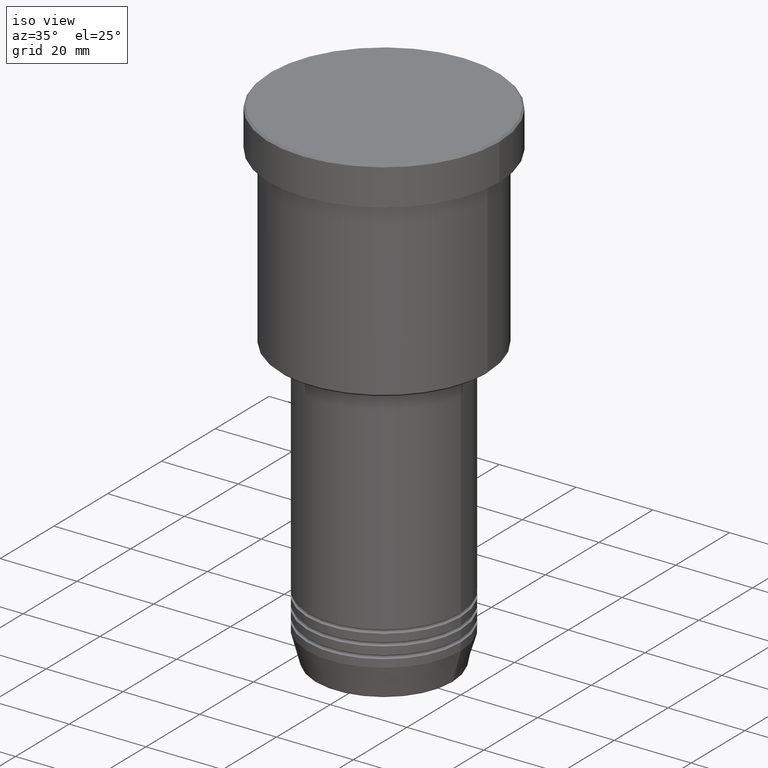
[diagram: clean part render]
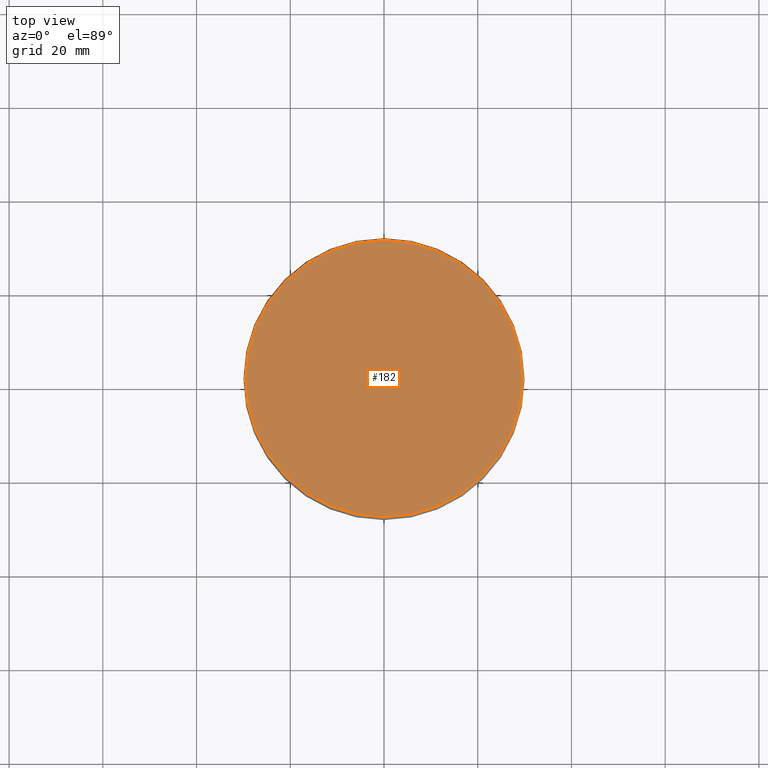
[diagram: tour spotlight — one face highlighted and labeled with its STEP entity id]
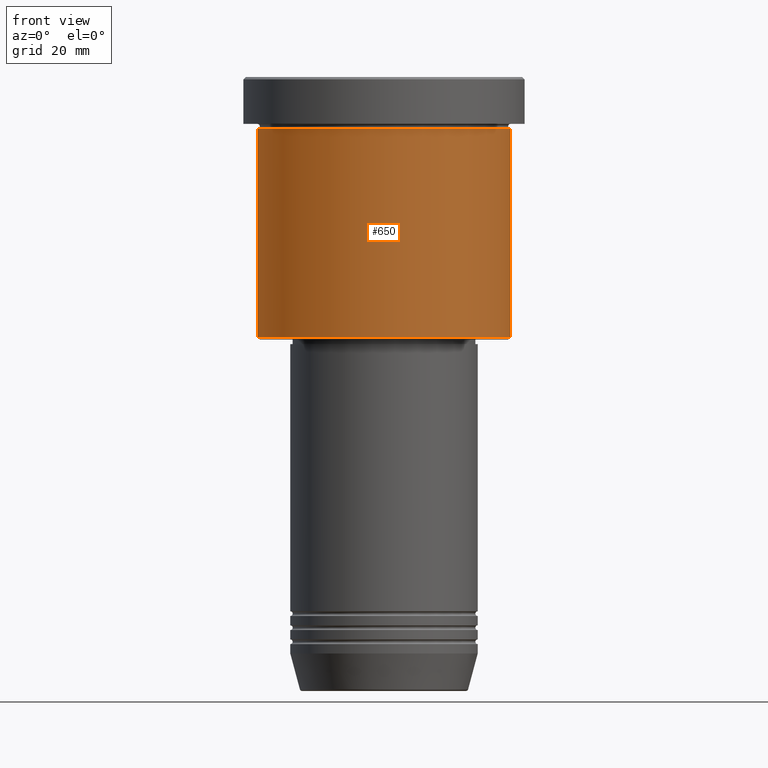
[diagram: tour spotlight — one face highlighted and labeled with its STEP entity id]
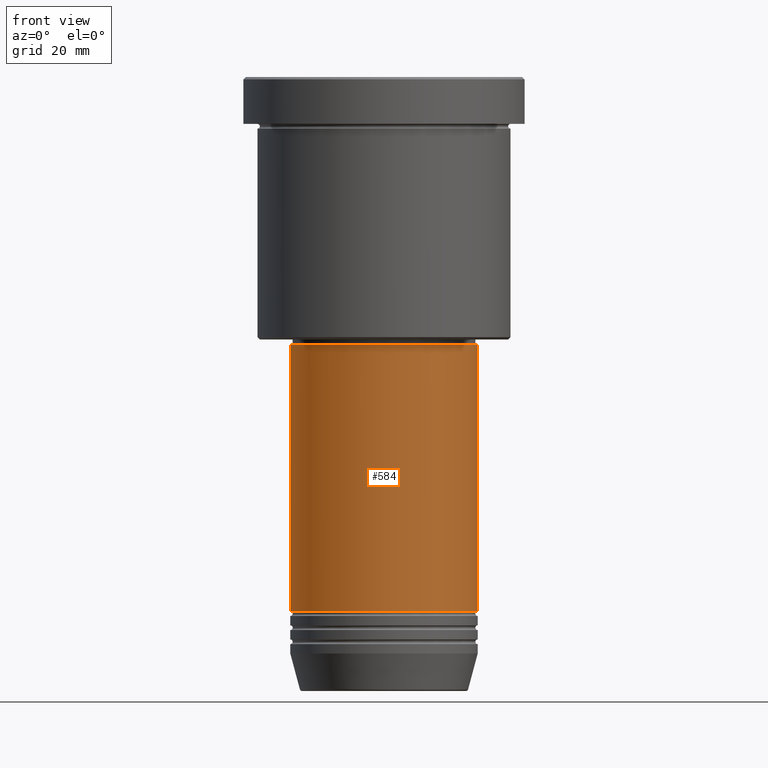
[diagram: tour spotlight — one face highlighted and labeled with its STEP entity id]
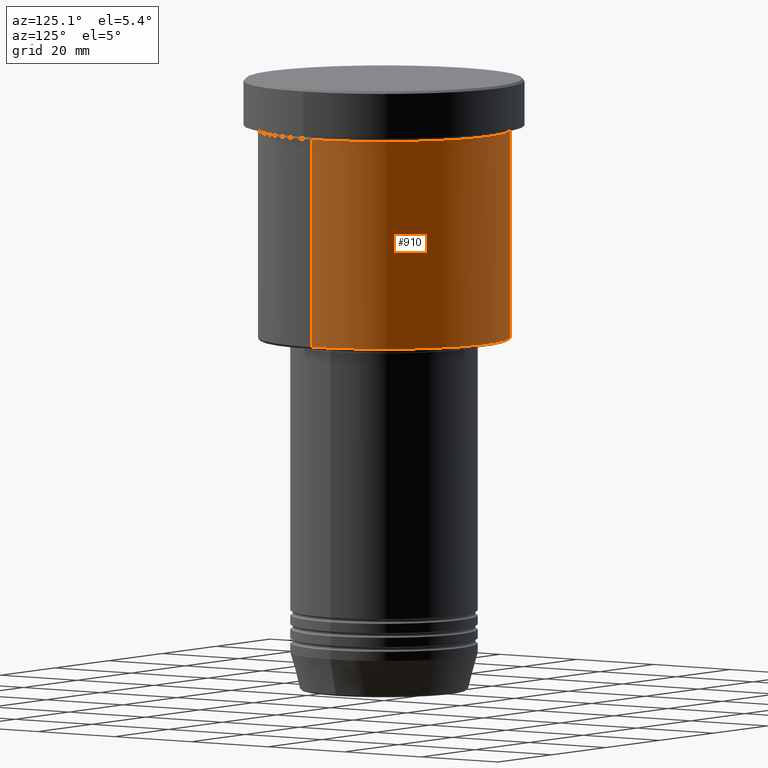
[diagram: tour spotlight — one face highlighted and labeled with its STEP entity id]
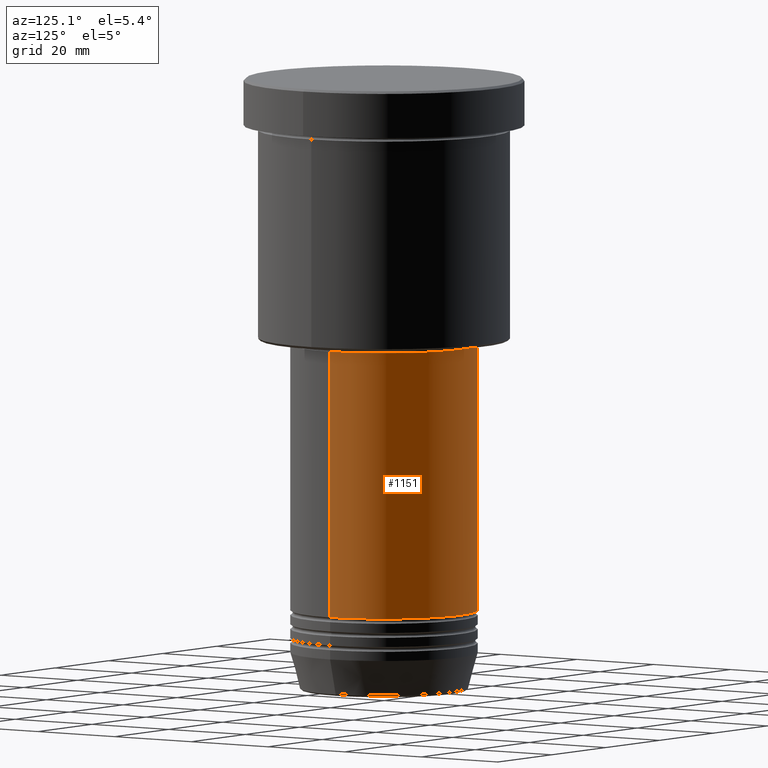
[diagram: tour spotlight — one face highlighted and labeled with its STEP entity id]
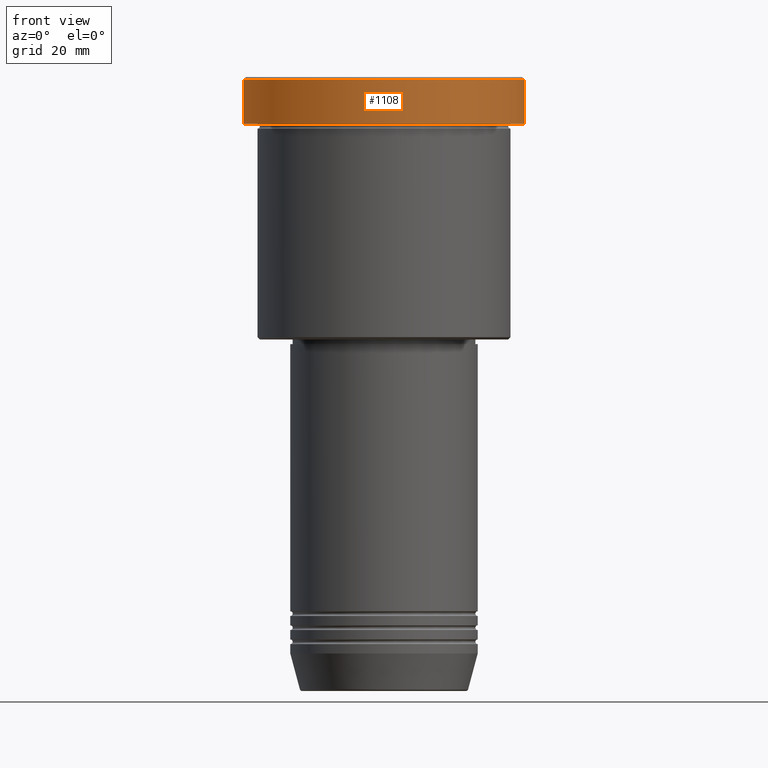
[diagram: tour spotlight — one face highlighted and labeled with its STEP entity id]
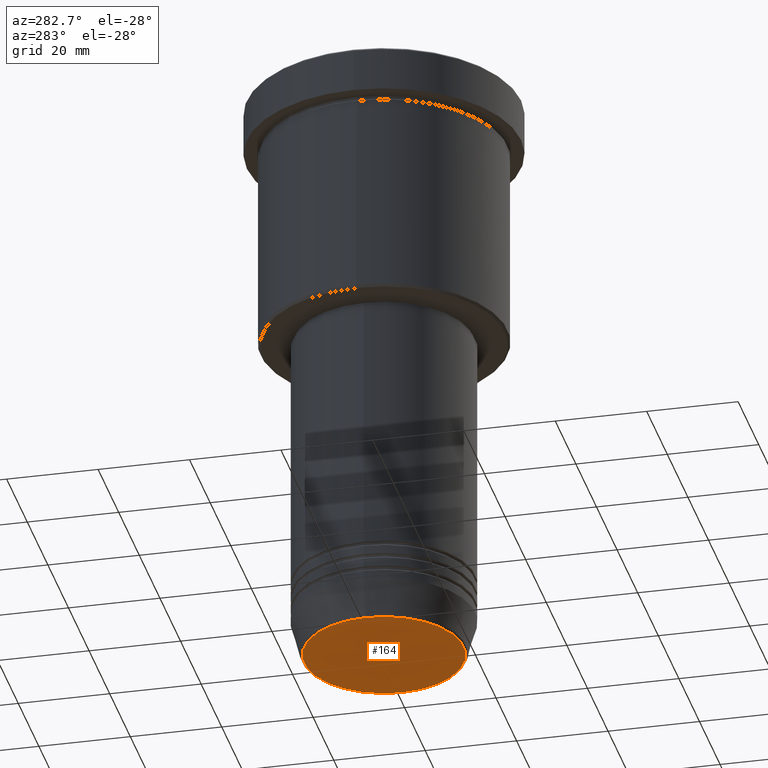
[diagram: tour spotlight — one face highlighted and labeled with its STEP entity id]
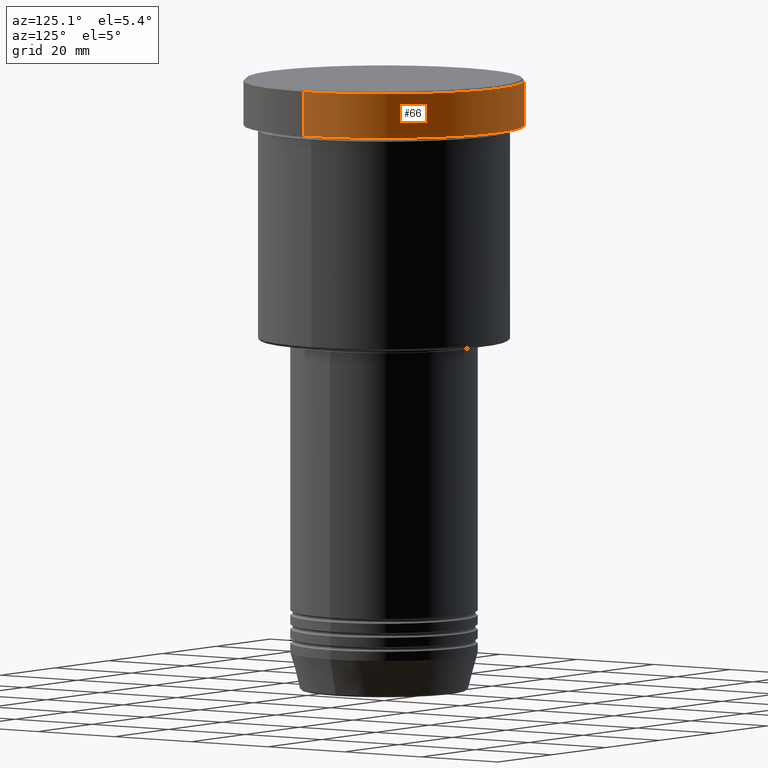
[diagram: tour spotlight — one face highlighted and labeled with its STEP entity id]
A machine part: a face-by-face anatomy tour. The part has 43 B-rep faces; the first image is the clean iso view, then the 8 largest visible faces are spotlighted one at a time (largest first), each with its STEP entity span.

Face 1 — top view, entity #182. In plain terms, the highlighted planar face has unit normal (0, -0, 1).
Definition (entity closure, byte-faithful):
#5 = EDGE_CURVE ( 'NONE', #975, #867, #710, .T. ) ;
#144 = CARTESIAN_POINT ( 'NONE',  ( 0.000000000000000000, 0.000000000000000000, 0.000000000000000000 ) ) ;
#182 = ADVANCED_FACE ( 'NONE', ( #258 ), #435, .T. ) ;
#258 = FACE_OUTER_BOUND ( 'NONE', #833, .T. ) ;
#274 = CARTESIAN_POINT ( 'NONE',  ( -29.50000000000000000, 0.000000000000000000, 0.000000000000000000 ) ) ;
#352 = DIRECTION ( 'NONE',  ( 1.000000000000000000, 0.000000000000000000, 0.000000000000000000 ) ) ;
#387 = CIRCLE ( 'NONE', #1067, 29.50000000000000000 ) ;
#422 = DIRECTION ( 'NONE',  ( -0.000000000000000000, -0.000000000000000000, 1.000000000000000000 ) ) ;
#430 = AXIS2_PLACEMENT_3D ( 'NONE', #144, #894, #352 ) ;
#435 = PLANE ( 'NONE',  #430 ) ;
#476 = ORIENTED_EDGE ( 'NONE', *, *, #5, .T. ) ;
#493 = CARTESIAN_POINT ( 'NONE',  ( 29.50000000000000000, 3.643324227463375391E-15, 0.000000000000000000 ) ) ;
#513 = CARTESIAN_POINT ( 'NONE',  ( 0.000000000000000000, 0.000000000000000000, 0.000000000000000000 ) ) ;
#544 = EDGE_CURVE ( 'NONE', #867, #975, #387, .T. ) ;
#630 = DIRECTION ( 'NONE',  ( -0.000000000000000000, -0.000000000000000000, 1.000000000000000000 ) ) ;
#643 = DIRECTION ( 'NONE',  ( 1.000000000000000000, 0.000000000000000000, 0.000000000000000000 ) ) ;
#710 = CIRCLE ( 'NONE', #855, 29.50000000000000000 ) ;
#833 = EDGE_LOOP ( 'NONE', ( #1052, #476 ) ) ;
#855 = AXIS2_PLACEMENT_3D ( 'NONE', #513, #422, #898 ) ;
#867 = VERTEX_POINT ( 'NONE', #274 ) ;
#894 = DIRECTION ( 'NONE',  ( 0.000000000000000000, -0.000000000000000000, 1.000000000000000000 ) ) ;
#898 = DIRECTION ( 'NONE',  ( 1.000000000000000000, 0.000000000000000000, 0.000000000000000000 ) ) ;
#975 = VERTEX_POINT ( 'NONE', #493 ) ;
#1002 = CARTESIAN_POINT ( 'NONE',  ( 0.000000000000000000, 0.000000000000000000, 0.000000000000000000 ) ) ;
#1052 = ORIENTED_EDGE ( 'NONE', *, *, #544, .T. ) ;
#1067 = AXIS2_PLACEMENT_3D ( 'NONE', #1002, #630, #643 ) ;

Face 2 — front view, entity #650. In plain terms, the highlighted cylindrical surface (partial cylindrical patch) has radius 27 mm, axis along (-0, -0, 1).
Definition (entity closure, byte-faithful):
#18 = DIRECTION ( 'NONE',  ( -0.000000000000000000, -0.000000000000000000, 1.000000000000000000 ) ) ;
#29 = VECTOR ( 'NONE', #301, 1000.000000000000000 ) ;
#72 = FACE_OUTER_BOUND ( 'NONE', #81, .T. ) ;
#81 = EDGE_LOOP ( 'NONE', ( #108, #981, #661, #711 ) ) ;
#107 = LINE ( 'NONE', #639, #167 ) ;
#108 = ORIENTED_EDGE ( 'NONE', *, *, #905, .F. ) ;
#124 = DIRECTION ( 'NONE',  ( 1.000000000000000000, 0.000000000000000000, 0.000000000000000000 ) ) ;
#150 = CIRCLE ( 'NONE', #336, 27.00000000000000355 ) ;
#167 = VECTOR ( 'NONE', #184, 1000.000000000000000 ) ;
#170 = CYLINDRICAL_SURFACE ( 'NONE', #818, 27.00000000000000355 ) ;
#184 = DIRECTION ( 'NONE',  ( -0.000000000000000000, -0.000000000000000000, 1.000000000000000000 ) ) ;
#222 = LINE ( 'NONE', #1137, #29 ) ;
#260 = CARTESIAN_POINT ( 'NONE',  ( 27.00000000000000355, 0.000000000000000000, -55.49999999999996447 ) ) ;
#301 = DIRECTION ( 'NONE',  ( -0.000000000000000000, -0.000000000000000000, 1.000000000000000000 ) ) ;
#336 = AXIS2_PLACEMENT_3D ( 'NONE', #444, #452, #823 ) ;
#360 = DIRECTION ( 'NONE',  ( -0.000000000000000000, -0.000000000000000000, 1.000000000000000000 ) ) ;
#417 = CARTESIAN_POINT ( 'NONE',  ( -27.00000000000000355, 3.306546357697854128E-15, -55.49999999999996447 ) ) ;
#440 = VERTEX_POINT ( 'NONE', #260 ) ;
#444 = CARTESIAN_POINT ( 'NONE',  ( 0.000000000000000000, 0.000000000000000000, -55.49999999999996447 ) ) ;
#452 = DIRECTION ( 'NONE',  ( -0.000000000000000000, -0.000000000000000000, 1.000000000000000000 ) ) ;
#473 = CARTESIAN_POINT ( 'NONE',  ( 0.000000000000000000, 0.000000000000000000, -10.99999999999999289 ) ) ;
#482 = VERTEX_POINT ( 'NONE', #417 ) ;
#600 = VERTEX_POINT ( 'NONE', #989 ) ;
#615 = EDGE_CURVE ( 'NONE', #482, #440, #150, .T. ) ;
#639 = CARTESIAN_POINT ( 'NONE',  ( -27.00000000000000355, 3.306546357697854128E-15, 0.000000000000000000 ) ) ;
#648 = CARTESIAN_POINT ( 'NONE',  ( 27.00000000000000355, 0.000000000000000000, -10.99999999999999289 ) ) ;
#650 = ADVANCED_FACE ( 'NONE', ( #72 ), #170, .T. ) ;
#655 = DIRECTION ( 'NONE',  ( 1.000000000000000000, 0.000000000000000000, 0.000000000000000000 ) ) ;
#661 = ORIENTED_EDGE ( 'NONE', *, *, #801, .T. ) ;
#702 = EDGE_CURVE ( 'NONE', #600, #852, #838, .T. ) ;
#711 = ORIENTED_EDGE ( 'NONE', *, *, #702, .F. ) ;
#720 = CARTESIAN_POINT ( 'NONE',  ( 0.000000000000000000, 0.000000000000000000, 0.000000000000000000 ) ) ;
#801 = EDGE_CURVE ( 'NONE', #440, #852, #222, .T. ) ;
#818 = AXIS2_PLACEMENT_3D ( 'NONE', #720, #360, #124 ) ;
#823 = DIRECTION ( 'NONE',  ( -1.000000000000000000, 0.000000000000000000, 0.000000000000000000 ) ) ;
#838 = CIRCLE ( 'NONE', #900, 27.00000000000000355 ) ;
#852 = VERTEX_POINT ( 'NONE', #648 ) ;
#900 = AXIS2_PLACEMENT_3D ( 'NONE', #473, #18, #655 ) ;
#905 = EDGE_CURVE ( 'NONE', #482, #600, #107, .T. ) ;
#981 = ORIENTED_EDGE ( 'NONE', *, *, #615, .T. ) ;
#989 = CARTESIAN_POINT ( 'NONE',  ( -27.00000000000000355, 3.306546357697854128E-15, -10.99999999999999289 ) ) ;
#1137 = CARTESIAN_POINT ( 'NONE',  ( 27.00000000000000355, 0.000000000000000000, 0.000000000000000000 ) ) ;

Face 3 — front view, entity #584. In plain terms, the highlighted cylindrical surface (partial cylindrical patch) has radius 20 mm, axis along (-0, -0, 1).
Definition (entity closure, byte-faithful):
#27 = AXIS2_PLACEMENT_3D ( 'NONE', #927, #176, #273 ) ;
#53 = DIRECTION ( 'NONE',  ( -0.000000000000000000, -0.000000000000000000, 1.000000000000000000 ) ) ;
#54 = ORIENTED_EDGE ( 'NONE', *, *, #63, .T. ) ;
#63 = EDGE_CURVE ( 'NONE', #959, #246, #820, .T. ) ;
#106 = VECTOR ( 'NONE', #53, 1000.000000000000000 ) ;
#110 = EDGE_CURVE ( 'NONE', #290, #347, #510, .T. ) ;
#122 = DIRECTION ( 'NONE',  ( -0.000000000000000000, -0.000000000000000000, 1.000000000000000000 ) ) ;
#176 = DIRECTION ( 'NONE',  ( -0.000000000000000000, -0.000000000000000000, 1.000000000000000000 ) ) ;
#246 = VERTEX_POINT ( 'NONE', #1021 ) ;
#259 = ORIENTED_EDGE ( 'NONE', *, *, #628, .F. ) ;
#268 = DIRECTION ( 'NONE',  ( -0.000000000000000000, -0.000000000000000000, 1.000000000000000000 ) ) ;
#273 = DIRECTION ( 'NONE',  ( 1.000000000000000000, 0.000000000000000000, 0.000000000000000000 ) ) ;
#290 = VERTEX_POINT ( 'NONE', #1120 ) ;
#347 = VERTEX_POINT ( 'NONE', #772 ) ;
#356 = CARTESIAN_POINT ( 'NONE',  ( 0.000000000000000000, 0.000000000000000000, -113.9999999999999574 ) ) ;
#358 = CARTESIAN_POINT ( 'NONE',  ( 0.000000000000000000, 0.000000000000000000, 0.000000000000000000 ) ) ;
#398 = CARTESIAN_POINT ( 'NONE',  ( -20.00000000000000000, 2.449293598294706513E-15, -113.9999999999999574 ) ) ;
#414 = ORIENTED_EDGE ( 'NONE', *, *, #110, .F. ) ;
#484 = AXIS2_PLACEMENT_3D ( 'NONE', #358, #122, #487 ) ;
#487 = DIRECTION ( 'NONE',  ( 1.000000000000000000, 0.000000000000000000, 0.000000000000000000 ) ) ;
#497 = EDGE_LOOP ( 'NONE', ( #259, #54, #1148, #414 ) ) ;
#510 = CIRCLE ( 'NONE', #27, 20.00000000000000000 ) ;
#584 = ADVANCED_FACE ( 'NONE', ( #937 ), #1179, .T. ) ;
#597 = AXIS2_PLACEMENT_3D ( 'NONE', #356, #1110, #1016 ) ;
#628 = EDGE_CURVE ( 'NONE', #959, #290, #1095, .T. ) ;
#742 = EDGE_CURVE ( 'NONE', #246, #347, #1035, .T. ) ;
#772 = CARTESIAN_POINT ( 'NONE',  ( 20.00000000000000000, 0.000000000000000000, -57.00000000000000000 ) ) ;
#820 = CIRCLE ( 'NONE', #597, 20.00000000000000000 ) ;
#927 = CARTESIAN_POINT ( 'NONE',  ( 0.000000000000000000, 0.000000000000000000, -57.00000000000000000 ) ) ;
#937 = FACE_OUTER_BOUND ( 'NONE', #497, .T. ) ;
#959 = VERTEX_POINT ( 'NONE', #398 ) ;
#1016 = DIRECTION ( 'NONE',  ( 1.000000000000000000, 0.000000000000000000, 0.000000000000000000 ) ) ;
#1021 = CARTESIAN_POINT ( 'NONE',  ( 20.00000000000000000, 0.000000000000000000, -113.9999999999999574 ) ) ;
#1035 = LINE ( 'NONE', #1165, #106 ) ;
#1046 = VECTOR ( 'NONE', #268, 1000.000000000000000 ) ;
#1083 = CARTESIAN_POINT ( 'NONE',  ( -20.00000000000000000, 2.449293598294706513E-15, 0.000000000000000000 ) ) ;
#1095 = LINE ( 'NONE', #1083, #1046 ) ;
#1110 = DIRECTION ( 'NONE',  ( -0.000000000000000000, -0.000000000000000000, 1.000000000000000000 ) ) ;
#1120 = CARTESIAN_POINT ( 'NONE',  ( -20.00000000000000000, 2.449293598294706513E-15, -57.00000000000000000 ) ) ;
#1148 = ORIENTED_EDGE ( 'NONE', *, *, #742, .T. ) ;
#1165 = CARTESIAN_POINT ( 'NONE',  ( 20.00000000000000000, 0.000000000000000000, 0.000000000000000000 ) ) ;
#1179 = CYLINDRICAL_SURFACE ( 'NONE', #484, 20.00000000000000000 ) ;

Face 4 — auxiliary view, entity #910. In plain terms, the highlighted cylindrical surface (partial cylindrical patch) has radius 27 mm, axis along (-0, -0, 1).
Definition (entity closure, byte-faithful):
#29 = VECTOR ( 'NONE', #301, 1000.000000000000000 ) ;
#67 = AXIS2_PLACEMENT_3D ( 'NONE', #897, #74, #849 ) ;
#74 = DIRECTION ( 'NONE',  ( -0.000000000000000000, -0.000000000000000000, 1.000000000000000000 ) ) ;
#87 = DIRECTION ( 'NONE',  ( -0.000000000000000000, -0.000000000000000000, 1.000000000000000000 ) ) ;
#107 = LINE ( 'NONE', #639, #167 ) ;
#167 = VECTOR ( 'NONE', #184, 1000.000000000000000 ) ;
#184 = DIRECTION ( 'NONE',  ( -0.000000000000000000, -0.000000000000000000, 1.000000000000000000 ) ) ;
#222 = LINE ( 'NONE', #1137, #29 ) ;
#260 = CARTESIAN_POINT ( 'NONE',  ( 27.00000000000000355, 0.000000000000000000, -55.49999999999996447 ) ) ;
#262 = ORIENTED_EDGE ( 'NONE', *, *, #598, .T. ) ;
#301 = DIRECTION ( 'NONE',  ( -0.000000000000000000, -0.000000000000000000, 1.000000000000000000 ) ) ;
#417 = CARTESIAN_POINT ( 'NONE',  ( -27.00000000000000355, 3.306546357697854128E-15, -55.49999999999996447 ) ) ;
#436 = EDGE_LOOP ( 'NONE', ( #262, #1079, #1024, #1034 ) ) ;
#440 = VERTEX_POINT ( 'NONE', #260 ) ;
#443 = EDGE_CURVE ( 'NONE', #852, #600, #539, .T. ) ;
#482 = VERTEX_POINT ( 'NONE', #417 ) ;
#485 = AXIS2_PLACEMENT_3D ( 'NONE', #553, #561, #644 ) ;
#507 = CIRCLE ( 'NONE', #934, 27.00000000000000355 ) ;
#539 = CIRCLE ( 'NONE', #67, 27.00000000000000355 ) ;
#553 = CARTESIAN_POINT ( 'NONE',  ( 0.000000000000000000, 0.000000000000000000, 0.000000000000000000 ) ) ;
#561 = DIRECTION ( 'NONE',  ( -0.000000000000000000, -0.000000000000000000, 1.000000000000000000 ) ) ;
#598 = EDGE_CURVE ( 'NONE', #440, #482, #507, .T. ) ;
#600 = VERTEX_POINT ( 'NONE', #989 ) ;
#607 = DIRECTION ( 'NONE',  ( -1.000000000000000000, 0.000000000000000000, 0.000000000000000000 ) ) ;
#634 = CYLINDRICAL_SURFACE ( 'NONE', #485, 27.00000000000000355 ) ;
#639 = CARTESIAN_POINT ( 'NONE',  ( -27.00000000000000355, 3.306546357697854128E-15, 0.000000000000000000 ) ) ;
#644 = DIRECTION ( 'NONE',  ( 1.000000000000000000, 0.000000000000000000, 0.000000000000000000 ) ) ;
#648 = CARTESIAN_POINT ( 'NONE',  ( 27.00000000000000355, 0.000000000000000000, -10.99999999999999289 ) ) ;
#743 = FACE_OUTER_BOUND ( 'NONE', #436, .T. ) ;
#801 = EDGE_CURVE ( 'NONE', #440, #852, #222, .T. ) ;
#810 = CARTESIAN_POINT ( 'NONE',  ( 0.000000000000000000, 0.000000000000000000, -55.49999999999996447 ) ) ;
#849 = DIRECTION ( 'NONE',  ( 1.000000000000000000, 0.000000000000000000, 0.000000000000000000 ) ) ;
#852 = VERTEX_POINT ( 'NONE', #648 ) ;
#897 = CARTESIAN_POINT ( 'NONE',  ( 0.000000000000000000, 0.000000000000000000, -10.99999999999999289 ) ) ;
#905 = EDGE_CURVE ( 'NONE', #482, #600, #107, .T. ) ;
#910 = ADVANCED_FACE ( 'NONE', ( #743 ), #634, .T. ) ;
#934 = AXIS2_PLACEMENT_3D ( 'NONE', #810, #87, #607 ) ;
#989 = CARTESIAN_POINT ( 'NONE',  ( -27.00000000000000355, 3.306546357697854128E-15, -10.99999999999999289 ) ) ;
#1024 = ORIENTED_EDGE ( 'NONE', *, *, #443, .F. ) ;
#1034 = ORIENTED_EDGE ( 'NONE', *, *, #801, .F. ) ;
#1079 = ORIENTED_EDGE ( 'NONE', *, *, #905, .T. ) ;
#1137 = CARTESIAN_POINT ( 'NONE',  ( 27.00000000000000355, 0.000000000000000000, 0.000000000000000000 ) ) ;

Face 5 — auxiliary view, entity #1151. In plain terms, the highlighted cylindrical surface (partial cylindrical patch) has radius 20 mm, axis along (-0, -0, 1).
Definition (entity closure, byte-faithful):
#40 = CARTESIAN_POINT ( 'NONE',  ( 0.000000000000000000, 0.000000000000000000, 0.000000000000000000 ) ) ;
#53 = DIRECTION ( 'NONE',  ( -0.000000000000000000, -0.000000000000000000, 1.000000000000000000 ) ) ;
#106 = VECTOR ( 'NONE', #53, 1000.000000000000000 ) ;
#225 = DIRECTION ( 'NONE',  ( -0.000000000000000000, -0.000000000000000000, 1.000000000000000000 ) ) ;
#241 = ORIENTED_EDGE ( 'NONE', *, *, #591, .F. ) ;
#246 = VERTEX_POINT ( 'NONE', #1021 ) ;
#268 = DIRECTION ( 'NONE',  ( -0.000000000000000000, -0.000000000000000000, 1.000000000000000000 ) ) ;
#290 = VERTEX_POINT ( 'NONE', #1120 ) ;
#331 = EDGE_LOOP ( 'NONE', ( #1036, #746, #241, #771 ) ) ;
#347 = VERTEX_POINT ( 'NONE', #772 ) ;
#386 = DIRECTION ( 'NONE',  ( 1.000000000000000000, 0.000000000000000000, 0.000000000000000000 ) ) ;
#398 = CARTESIAN_POINT ( 'NONE',  ( -20.00000000000000000, 2.449293598294706513E-15, -113.9999999999999574 ) ) ;
#466 = AXIS2_PLACEMENT_3D ( 'NONE', #1091, #621, #892 ) ;
#496 = CARTESIAN_POINT ( 'NONE',  ( 0.000000000000000000, 0.000000000000000000, -113.9999999999999574 ) ) ;
#581 = AXIS2_PLACEMENT_3D ( 'NONE', #40, #225, #1134 ) ;
#591 = EDGE_CURVE ( 'NONE', #347, #290, #713, .T. ) ;
#599 = FACE_OUTER_BOUND ( 'NONE', #331, .T. ) ;
#610 = CIRCLE ( 'NONE', #738, 20.00000000000000000 ) ;
#621 = DIRECTION ( 'NONE',  ( -0.000000000000000000, -0.000000000000000000, 1.000000000000000000 ) ) ;
#628 = EDGE_CURVE ( 'NONE', #959, #290, #1095, .T. ) ;
#713 = CIRCLE ( 'NONE', #466, 20.00000000000000000 ) ;
#736 = EDGE_CURVE ( 'NONE', #246, #959, #610, .T. ) ;
#738 = AXIS2_PLACEMENT_3D ( 'NONE', #496, #851, #386 ) ;
#742 = EDGE_CURVE ( 'NONE', #246, #347, #1035, .T. ) ;
#746 = ORIENTED_EDGE ( 'NONE', *, *, #628, .T. ) ;
#771 = ORIENTED_EDGE ( 'NONE', *, *, #742, .F. ) ;
#772 = CARTESIAN_POINT ( 'NONE',  ( 20.00000000000000000, 0.000000000000000000, -57.00000000000000000 ) ) ;
#789 = CYLINDRICAL_SURFACE ( 'NONE', #581, 20.00000000000000000 ) ;
#851 = DIRECTION ( 'NONE',  ( -0.000000000000000000, -0.000000000000000000, 1.000000000000000000 ) ) ;
#892 = DIRECTION ( 'NONE',  ( 1.000000000000000000, 0.000000000000000000, 0.000000000000000000 ) ) ;
#959 = VERTEX_POINT ( 'NONE', #398 ) ;
#1021 = CARTESIAN_POINT ( 'NONE',  ( 20.00000000000000000, 0.000000000000000000, -113.9999999999999574 ) ) ;
#1035 = LINE ( 'NONE', #1165, #106 ) ;
#1036 = ORIENTED_EDGE ( 'NONE', *, *, #736, .T. ) ;
#1046 = VECTOR ( 'NONE', #268, 1000.000000000000000 ) ;
#1083 = CARTESIAN_POINT ( 'NONE',  ( -20.00000000000000000, 2.449293598294706513E-15, 0.000000000000000000 ) ) ;
#1091 = CARTESIAN_POINT ( 'NONE',  ( 0.000000000000000000, 0.000000000000000000, -57.00000000000000000 ) ) ;
#1095 = LINE ( 'NONE', #1083, #1046 ) ;
#1120 = CARTESIAN_POINT ( 'NONE',  ( -20.00000000000000000, 2.449293598294706513E-15, -57.00000000000000000 ) ) ;
#1134 = DIRECTION ( 'NONE',  ( 1.000000000000000000, 0.000000000000000000, 0.000000000000000000 ) ) ;
#1151 = ADVANCED_FACE ( 'NONE', ( #599 ), #789, .T. ) ;
#1165 = CARTESIAN_POINT ( 'NONE',  ( 20.00000000000000000, 0.000000000000000000, 0.000000000000000000 ) ) ;

Face 6 — front view, entity #1108. In plain terms, the highlighted cylindrical surface (partial cylindrical patch) has radius 30 mm, axis along (-0, -0, 1).
Definition (entity closure, byte-faithful):
#69 = CIRCLE ( 'NONE', #950, 30.00000000000000000 ) ;
#171 = EDGE_CURVE ( 'NONE', #175, #1146, #699, .T. ) ;
#175 = VERTEX_POINT ( 'NONE', #1078 ) ;
#186 = CARTESIAN_POINT ( 'NONE',  ( -30.00000000000000000, 3.673940397442059178E-15, -0.4999999999999935052 ) ) ;
#198 = ORIENTED_EDGE ( 'NONE', *, *, #275, .T. ) ;
#247 = ORIENTED_EDGE ( 'NONE', *, *, #1014, .T. ) ;
#275 = EDGE_CURVE ( 'NONE', #1146, #455, #69, .T. ) ;
#280 = VECTOR ( 'NONE', #606, 1000.000000000000000 ) ;
#312 = DIRECTION ( 'NONE',  ( 1.000000000000000000, 0.000000000000000000, 0.000000000000000000 ) ) ;
#455 = VERTEX_POINT ( 'NONE', #186 ) ;
#486 = DIRECTION ( 'NONE',  ( 0.000000000000000000, 0.000000000000000000, -1.000000000000000000 ) ) ;
#503 = LINE ( 'NONE', #583, #935 ) ;
#511 = CARTESIAN_POINT ( 'NONE',  ( 0.000000000000000000, 0.000000000000000000, 0.000000000000000000 ) ) ;
#543 = DIRECTION ( 'NONE',  ( 1.000000000000000000, 0.000000000000000000, 0.000000000000000000 ) ) ;
#583 = CARTESIAN_POINT ( 'NONE',  ( -30.00000000000000000, 3.673940397442059178E-15, 0.000000000000000000 ) ) ;
#606 = DIRECTION ( 'NONE',  ( -0.000000000000000000, -0.000000000000000000, 1.000000000000000000 ) ) ;
#657 = CARTESIAN_POINT ( 'NONE',  ( 0.000000000000000000, 0.000000000000000000, -9.999999999999992895 ) ) ;
#667 = DIRECTION ( 'NONE',  ( -0.000000000000000000, -0.000000000000000000, 1.000000000000000000 ) ) ;
#675 = AXIS2_PLACEMENT_3D ( 'NONE', #511, #883, #1048 ) ;
#679 = EDGE_LOOP ( 'NONE', ( #686, #247, #896, #198 ) ) ;
#686 = ORIENTED_EDGE ( 'NONE', *, *, #1174, .F. ) ;
#699 = LINE ( 'NONE', #1075, #280 ) ;
#739 = VERTEX_POINT ( 'NONE', #1144 ) ;
#775 = CYLINDRICAL_SURFACE ( 'NONE', #675, 30.00000000000000000 ) ;
#800 = AXIS2_PLACEMENT_3D ( 'NONE', #657, #1033, #312 ) ;
#883 = DIRECTION ( 'NONE',  ( -0.000000000000000000, -0.000000000000000000, 1.000000000000000000 ) ) ;
#896 = ORIENTED_EDGE ( 'NONE', *, *, #171, .T. ) ;
#935 = VECTOR ( 'NONE', #667, 1000.000000000000000 ) ;
#942 = CARTESIAN_POINT ( 'NONE',  ( 0.000000000000000000, 0.000000000000000000, -0.4999999999999935052 ) ) ;
#950 = AXIS2_PLACEMENT_3D ( 'NONE', #942, #486, #543 ) ;
#1012 = CIRCLE ( 'NONE', #800, 30.00000000000000000 ) ;
#1014 = EDGE_CURVE ( 'NONE', #739, #175, #1012, .T. ) ;
#1033 = DIRECTION ( 'NONE',  ( -0.000000000000000000, -0.000000000000000000, 1.000000000000000000 ) ) ;
#1041 = CARTESIAN_POINT ( 'NONE',  ( 30.00000000000000000, 0.000000000000000000, -0.4999999999999935052 ) ) ;
#1048 = DIRECTION ( 'NONE',  ( 1.000000000000000000, 0.000000000000000000, 0.000000000000000000 ) ) ;
#1075 = CARTESIAN_POINT ( 'NONE',  ( 30.00000000000000000, 0.000000000000000000, 0.000000000000000000 ) ) ;
#1078 = CARTESIAN_POINT ( 'NONE',  ( 30.00000000000000000, 0.000000000000000000, -9.999999999999992895 ) ) ;
#1108 = ADVANCED_FACE ( 'NONE', ( #1126 ), #775, .T. ) ;
#1126 = FACE_OUTER_BOUND ( 'NONE', #679, .T. ) ;
#1144 = CARTESIAN_POINT ( 'NONE',  ( -30.00000000000000000, 3.673940397442059178E-15, -9.999999999999992895 ) ) ;
#1146 = VERTEX_POINT ( 'NONE', #1041 ) ;
#1174 = EDGE_CURVE ( 'NONE', #739, #455, #503, .T. ) ;

Face 7 — auxiliary view, entity #164. In plain terms, the highlighted planar face has unit normal (0, -0, 1).
Definition (entity closure, byte-faithful):
#7 = EDGE_LOOP ( 'NONE', ( #498, #987 ) ) ;
#45 = CIRCLE ( 'NONE', #1173, 17.47274296656152970 ) ;
#52 = CARTESIAN_POINT ( 'NONE',  ( 0.000000000000000000, 0.000000000000000000, -131.0000000000000000 ) ) ;
#70 = DIRECTION ( 'NONE',  ( 1.000000000000000000, 0.000000000000000000, 0.000000000000000000 ) ) ;
#151 = EDGE_CURVE ( 'NONE', #521, #1129, #1119, .T. ) ;
#161 = DIRECTION ( 'NONE',  ( 0.000000000000000000, -0.000000000000000000, 1.000000000000000000 ) ) ;
#164 = ADVANCED_FACE ( 'NONE', ( #339 ), #240, .F. ) ;
#195 = CARTESIAN_POINT ( 'NONE',  ( 17.47274296656152970, 0.000000000000000000, -131.0000000000000000 ) ) ;
#212 = AXIS2_PLACEMENT_3D ( 'NONE', #879, #1164, #70 ) ;
#221 = EDGE_CURVE ( 'NONE', #1129, #521, #45, .T. ) ;
#240 = PLANE ( 'NONE',  #795 ) ;
#270 = DIRECTION ( 'NONE',  ( 1.000000000000000000, 0.000000000000000000, 0.000000000000000000 ) ) ;
#339 = FACE_OUTER_BOUND ( 'NONE', #7, .T. ) ;
#498 = ORIENTED_EDGE ( 'NONE', *, *, #151, .T. ) ;
#521 = VERTEX_POINT ( 'NONE', #195 ) ;
#552 = DIRECTION ( 'NONE',  ( 0.000000000000000000, 0.000000000000000000, -1.000000000000000000 ) ) ;
#689 = DIRECTION ( 'NONE',  ( 1.000000000000000000, 0.000000000000000000, 0.000000000000000000 ) ) ;
#795 = AXIS2_PLACEMENT_3D ( 'NONE', #52, #161, #689 ) ;
#879 = CARTESIAN_POINT ( 'NONE',  ( 0.000000000000000000, 0.000000000000000000, -131.0000000000000000 ) ) ;
#987 = ORIENTED_EDGE ( 'NONE', *, *, #221, .T. ) ;
#1089 = CARTESIAN_POINT ( 'NONE',  ( 0.000000000000000000, 0.000000000000000000, -131.0000000000000000 ) ) ;
#1119 = CIRCLE ( 'NONE', #212, 17.47274296656152970 ) ;
#1129 = VERTEX_POINT ( 'NONE', #1150 ) ;
#1150 = CARTESIAN_POINT ( 'NONE',  ( -17.47274296656152970, 2.169366823916867714E-15, -131.0000000000000000 ) ) ;
#1164 = DIRECTION ( 'NONE',  ( 0.000000000000000000, 0.000000000000000000, -1.000000000000000000 ) ) ;
#1173 = AXIS2_PLACEMENT_3D ( 'NONE', #1089, #552, #270 ) ;

Face 8 — auxiliary view, entity #66. In plain terms, the highlighted cylindrical surface (partial cylindrical patch) has radius 30 mm, axis along (-0, -0, 1).
Definition (entity closure, byte-faithful):
#10 = CARTESIAN_POINT ( 'NONE',  ( 0.000000000000000000, 0.000000000000000000, 0.000000000000000000 ) ) ;
#46 = CIRCLE ( 'NONE', #712, 30.00000000000000000 ) ;
#51 = CIRCLE ( 'NONE', #715, 30.00000000000000000 ) ;
#66 = ADVANCED_FACE ( 'NONE', ( #372 ), #193, .T. ) ;
#103 = DIRECTION ( 'NONE',  ( -0.000000000000000000, -0.000000000000000000, 1.000000000000000000 ) ) ;
#171 = EDGE_CURVE ( 'NONE', #175, #1146, #699, .T. ) ;
#175 = VERTEX_POINT ( 'NONE', #1078 ) ;
#186 = CARTESIAN_POINT ( 'NONE',  ( -30.00000000000000000, 3.673940397442059178E-15, -0.4999999999999935052 ) ) ;
#193 = CYLINDRICAL_SURFACE ( 'NONE', #385, 30.00000000000000000 ) ;
#194 = EDGE_LOOP ( 'NONE', ( #824, #388, #216, #625 ) ) ;
#202 = EDGE_CURVE ( 'NONE', #455, #1146, #51, .T. ) ;
#216 = ORIENTED_EDGE ( 'NONE', *, *, #202, .T. ) ;
#266 = DIRECTION ( 'NONE',  ( 1.000000000000000000, 0.000000000000000000, 0.000000000000000000 ) ) ;
#280 = VECTOR ( 'NONE', #606, 1000.000000000000000 ) ;
#368 = EDGE_CURVE ( 'NONE', #175, #739, #46, .T. ) ;
#372 = FACE_OUTER_BOUND ( 'NONE', #194, .T. ) ;
#385 = AXIS2_PLACEMENT_3D ( 'NONE', #10, #103, #1112 ) ;
#388 = ORIENTED_EDGE ( 'NONE', *, *, #1174, .T. ) ;
#455 = VERTEX_POINT ( 'NONE', #186 ) ;
#503 = LINE ( 'NONE', #583, #935 ) ;
#583 = CARTESIAN_POINT ( 'NONE',  ( -30.00000000000000000, 3.673940397442059178E-15, 0.000000000000000000 ) ) ;
#606 = DIRECTION ( 'NONE',  ( -0.000000000000000000, -0.000000000000000000, 1.000000000000000000 ) ) ;
#625 = ORIENTED_EDGE ( 'NONE', *, *, #171, .F. ) ;
#638 = CARTESIAN_POINT ( 'NONE',  ( 0.000000000000000000, 0.000000000000000000, -0.4999999999999935052 ) ) ;
#667 = DIRECTION ( 'NONE',  ( -0.000000000000000000, -0.000000000000000000, 1.000000000000000000 ) ) ;
#699 = LINE ( 'NONE', #1075, #280 ) ;
#712 = AXIS2_PLACEMENT_3D ( 'NONE', #873, #786, #955 ) ;
#715 = AXIS2_PLACEMENT_3D ( 'NONE', #638, #1017, #266 ) ;
#739 = VERTEX_POINT ( 'NONE', #1144 ) ;
#786 = DIRECTION ( 'NONE',  ( -0.000000000000000000, -0.000000000000000000, 1.000000000000000000 ) ) ;
#824 = ORIENTED_EDGE ( 'NONE', *, *, #368, .T. ) ;
#873 = CARTESIAN_POINT ( 'NONE',  ( 0.000000000000000000, 0.000000000000000000, -9.999999999999992895 ) ) ;
#935 = VECTOR ( 'NONE', #667, 1000.000000000000000 ) ;
#955 = DIRECTION ( 'NONE',  ( 1.000000000000000000, 0.000000000000000000, 0.000000000000000000 ) ) ;
#1017 = DIRECTION ( 'NONE',  ( 0.000000000000000000, 0.000000000000000000, -1.000000000000000000 ) ) ;
#1041 = CARTESIAN_POINT ( 'NONE',  ( 30.00000000000000000, 0.000000000000000000, -0.4999999999999935052 ) ) ;
#1075 = CARTESIAN_POINT ( 'NONE',  ( 30.00000000000000000, 0.000000000000000000, 0.000000000000000000 ) ) ;
#1078 = CARTESIAN_POINT ( 'NONE',  ( 30.00000000000000000, 0.000000000000000000, -9.999999999999992895 ) ) ;
#1112 = DIRECTION ( 'NONE',  ( 1.000000000000000000, 0.000000000000000000, 0.000000000000000000 ) ) ;
#1144 = CARTESIAN_POINT ( 'NONE',  ( -30.00000000000000000, 3.673940397442059178E-15, -9.999999999999992895 ) ) ;
#1146 = VERTEX_POINT ( 'NONE', #1041 ) ;
#1174 = EDGE_CURVE ( 'NONE', #739, #455, #503, .T. ) ;